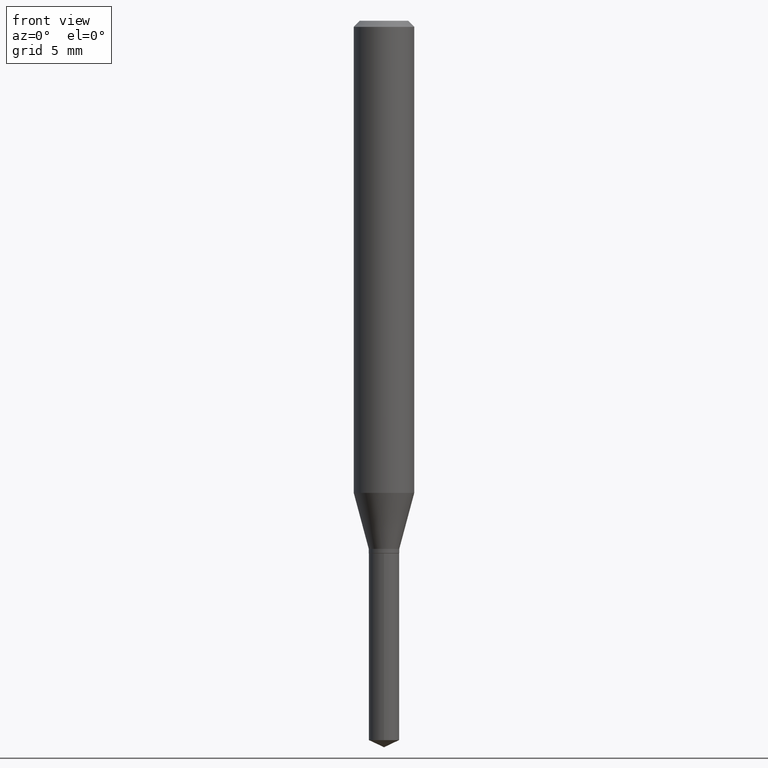
[diagram: clean part render]
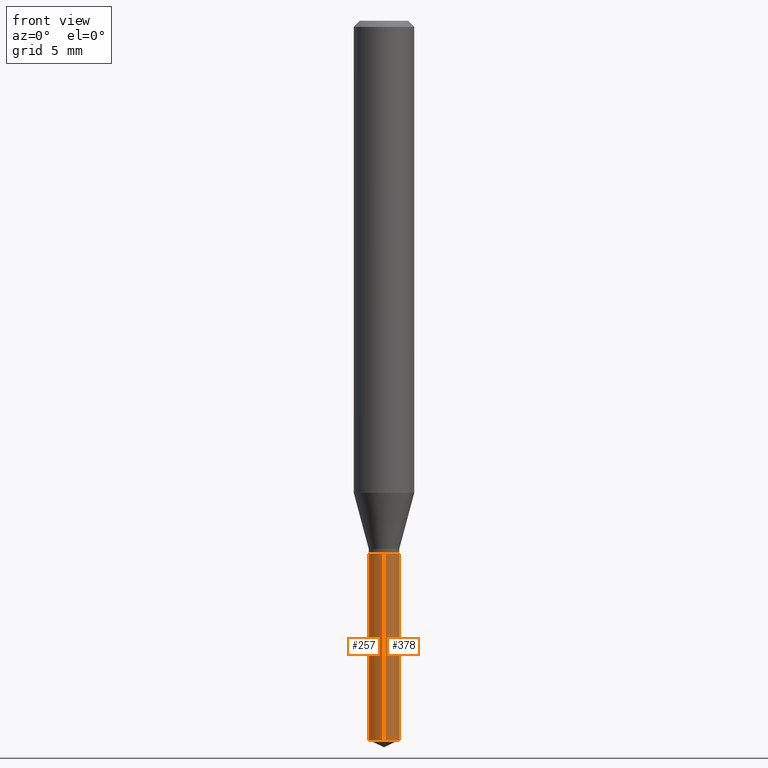
[diagram: same view with one multi-face feature highlighted, each face labeled with its STEP entity id]
A machine part, front view. The highlighted faces form ONE feature: a constant-radius fillet chain: 2 tangent blend faces with common blend radius 0.8001 mm. The faces share edges in the B-rep.
Their STEP definitions:
[1] entity #378 (Cylinder):
#2 = LINE ( 'NONE', #8, #445 ) ;
#8 = CARTESIAN_POINT ( 'NONE',  ( -2.199633243470904924E-16, -0.03150000000000384437, -1.099999999999999867 ) ) ;
#50 = VERTEX_POINT ( 'NONE', #462 ) ;
#59 = CARTESIAN_POINT ( 'NONE',  ( 2.690015686803650369E-29, -3.840629472727460101E-15, -1.100000000000000089 ) ) ;
#69 = DIRECTION ( 'NONE',  ( -2.445399690415121530E-29, 3.491580316559632610E-15, 1.000000000000000000 ) ) ;
#72 = AXIS2_PLACEMENT_3D ( 'NONE', #402, #69, #372 ) ;
#101 = LINE ( 'NONE', #359, #287 ) ;
#106 = CARTESIAN_POINT ( 'NONE',  ( 2.238209617644679463E-16, 0.03149999999999615607, -1.100000000000000089 ) ) ;
#140 = EDGE_CURVE ( 'NONE', #183, #408, #362, .T. ) ;
#150 = CARTESIAN_POINT ( 'NONE',  ( -2.199633243470810507E-16, -0.03150000000000519051, -1.485311308768117788 ) ) ;
#175 = AXIS2_PLACEMENT_3D ( 'NONE', #356, #479, #393 ) ;
#178 = DIRECTION ( 'NONE',  ( -2.445399690415121530E-29, 3.491580316559632610E-15, 1.000000000000000000 ) ) ;
#183 = VERTEX_POINT ( 'NONE', #478 ) ;
#199 = EDGE_CURVE ( 'NONE', #50, #408, #101, .T. ) ;
#219 = EDGE_CURVE ( 'NONE', #335, #50, #267, .T. ) ;
#225 = FACE_OUTER_BOUND ( 'NONE', #376, .T. ) ;
#245 = DIRECTION ( 'NONE',  ( -6.982962677686265922E-15, -1.000000000000000000, 4.336266656609941617E-15 ) ) ;
#254 = CYLINDRICAL_SURFACE ( 'NONE', #72, 0.03150000000000000022 ) ;
#267 = CIRCLE ( 'NONE', #175, 0.03150000000000000022 ) ;
#284 = DIRECTION ( 'NONE',  ( -2.445399690415121810E-29, 3.491580316559632610E-15, 1.000000000000000000 ) ) ;
#287 = VECTOR ( 'NONE', #284, 39.37007874015748143 ) ;
#294 = ORIENTED_EDGE ( 'NONE', *, *, #219, .T. ) ;
#301 = ORIENTED_EDGE ( 'NONE', *, *, #302, .F. ) ;
#302 = EDGE_CURVE ( 'NONE', #335, #183, #2, .T. ) ;
#330 = DIRECTION ( 'NONE',  ( -2.445399690415121810E-29, 3.491580316559632610E-15, 1.000000000000000000 ) ) ;
#335 = VERTEX_POINT ( 'NONE', #150 ) ;
#356 = CARTESIAN_POINT ( 'NONE',  ( 3.632255841978650681E-29, -5.185974854170051324E-15, -1.485311308768117788 ) ) ;
#359 = CARTESIAN_POINT ( 'NONE',  ( 2.238209617644584307E-16, 0.03149999999999615607, -1.100000000000000089 ) ) ;
#362 = CIRCLE ( 'NONE', #438, 0.03150000000000000022 ) ;
#372 = DIRECTION ( 'NONE',  ( -6.982962677686265922E-15, -1.000000000000000000, 4.336266656609941617E-15 ) ) ;
#376 = EDGE_LOOP ( 'NONE', ( #294, #384, #398, #301 ) ) ;
#378 = ADVANCED_FACE ( 'NONE', ( #225 ), #254, .T. ) ;
#384 = ORIENTED_EDGE ( 'NONE', *, *, #199, .T. ) ;
#393 = DIRECTION ( 'NONE',  ( -6.982962677686265922E-15, -1.000000000000000000, 0.000000000000000000 ) ) ;
#398 = ORIENTED_EDGE ( 'NONE', *, *, #140, .F. ) ;
#402 = CARTESIAN_POINT ( 'NONE',  ( 2.690015686803650369E-29, -3.840629472727460101E-15, -1.100000000000000089 ) ) ;
#408 = VERTEX_POINT ( 'NONE', #106 ) ;
#438 = AXIS2_PLACEMENT_3D ( 'NONE', #59, #178, #245 ) ;
#445 = VECTOR ( 'NONE', #330, 39.37007874015748143 ) ;
#462 = CARTESIAN_POINT ( 'NONE',  ( 2.238209617644678970E-16, 0.03149999999999481687, -1.485311308768117788 ) ) ;
#478 = CARTESIAN_POINT ( 'NONE',  ( -2.199633243470904924E-16, -0.03150000000000384437, -1.099999999999999867 ) ) ;
#479 = DIRECTION ( 'NONE',  ( -2.445399690415121530E-29, 3.491580316559632610E-15, 1.000000000000000000 ) ) ;
[2] entity #257 (Cylinder):
#2 = LINE ( 'NONE', #8, #445 ) ;
#8 = CARTESIAN_POINT ( 'NONE',  ( -2.199633243470904924E-16, -0.03150000000000384437, -1.099999999999999867 ) ) ;
#20 = FACE_OUTER_BOUND ( 'NONE', #270, .T. ) ;
#50 = VERTEX_POINT ( 'NONE', #462 ) ;
#101 = LINE ( 'NONE', #359, #287 ) ;
#106 = CARTESIAN_POINT ( 'NONE',  ( 2.238209617644679463E-16, 0.03149999999999615607, -1.100000000000000089 ) ) ;
#114 = CIRCLE ( 'NONE', #333, 0.03150000000000000022 ) ;
#134 = DIRECTION ( 'NONE',  ( -6.982962677686265922E-15, -1.000000000000000000, 4.336266656609941617E-15 ) ) ;
#143 = ORIENTED_EDGE ( 'NONE', *, *, #302, .T. ) ;
#150 = CARTESIAN_POINT ( 'NONE',  ( -2.199633243470810507E-16, -0.03150000000000519051, -1.485311308768117788 ) ) ;
#160 = CIRCLE ( 'NONE', #319, 0.03150000000000000022 ) ;
#168 = EDGE_CURVE ( 'NONE', #408, #183, #160, .T. ) ;
#183 = VERTEX_POINT ( 'NONE', #478 ) ;
#194 = EDGE_CURVE ( 'NONE', #50, #335, #114, .T. ) ;
#199 = EDGE_CURVE ( 'NONE', #50, #408, #101, .T. ) ;
#216 = ORIENTED_EDGE ( 'NONE', *, *, #194, .T. ) ;
#243 = DIRECTION ( 'NONE',  ( -2.445399690415121530E-29, 3.491580316559632610E-15, 1.000000000000000000 ) ) ;
#248 = CARTESIAN_POINT ( 'NONE',  ( 2.690015686803650369E-29, -3.840629472727460101E-15, -1.100000000000000089 ) ) ;
#257 = ADVANCED_FACE ( 'NONE', ( #20 ), #432, .T. ) ;
#268 = AXIS2_PLACEMENT_3D ( 'NONE', #315, #469, #134 ) ;
#270 = EDGE_LOOP ( 'NONE', ( #422, #216, #143, #309 ) ) ;
#284 = DIRECTION ( 'NONE',  ( -2.445399690415121810E-29, 3.491580316559632610E-15, 1.000000000000000000 ) ) ;
#287 = VECTOR ( 'NONE', #284, 39.37007874015748143 ) ;
#302 = EDGE_CURVE ( 'NONE', #335, #183, #2, .T. ) ;
#309 = ORIENTED_EDGE ( 'NONE', *, *, #168, .F. ) ;
#315 = CARTESIAN_POINT ( 'NONE',  ( 2.690015686803650369E-29, -3.840629472727460101E-15, -1.100000000000000089 ) ) ;
#319 = AXIS2_PLACEMENT_3D ( 'NONE', #248, #243, #324 ) ;
#322 = DIRECTION ( 'NONE',  ( -2.445399690415121530E-29, 3.491580316559632610E-15, 1.000000000000000000 ) ) ;
#324 = DIRECTION ( 'NONE',  ( -6.982962677686265922E-15, -1.000000000000000000, 4.336266656609941617E-15 ) ) ;
#330 = DIRECTION ( 'NONE',  ( -2.445399690415121810E-29, 3.491580316559632610E-15, 1.000000000000000000 ) ) ;
#333 = AXIS2_PLACEMENT_3D ( 'NONE', #387, #322, #436 ) ;
#335 = VERTEX_POINT ( 'NONE', #150 ) ;
#359 = CARTESIAN_POINT ( 'NONE',  ( 2.238209617644584307E-16, 0.03149999999999615607, -1.100000000000000089 ) ) ;
#387 = CARTESIAN_POINT ( 'NONE',  ( 3.632255841978650681E-29, -5.185974854170051324E-15, -1.485311308768117788 ) ) ;
#408 = VERTEX_POINT ( 'NONE', #106 ) ;
#422 = ORIENTED_EDGE ( 'NONE', *, *, #199, .F. ) ;
#432 = CYLINDRICAL_SURFACE ( 'NONE', #268, 0.03150000000000000022 ) ;
#436 = DIRECTION ( 'NONE',  ( -6.982962677686265922E-15, -1.000000000000000000, 0.000000000000000000 ) ) ;
#445 = VECTOR ( 'NONE', #330, 39.37007874015748143 ) ;
#462 = CARTESIAN_POINT ( 'NONE',  ( 2.238209617644678970E-16, 0.03149999999999481687, -1.485311308768117788 ) ) ;
#469 = DIRECTION ( 'NONE',  ( -2.445399690415121530E-29, 3.491580316559632610E-15, 1.000000000000000000 ) ) ;
#478 = CARTESIAN_POINT ( 'NONE',  ( -2.199633243470904924E-16, -0.03150000000000384437, -1.099999999999999867 ) ) ;